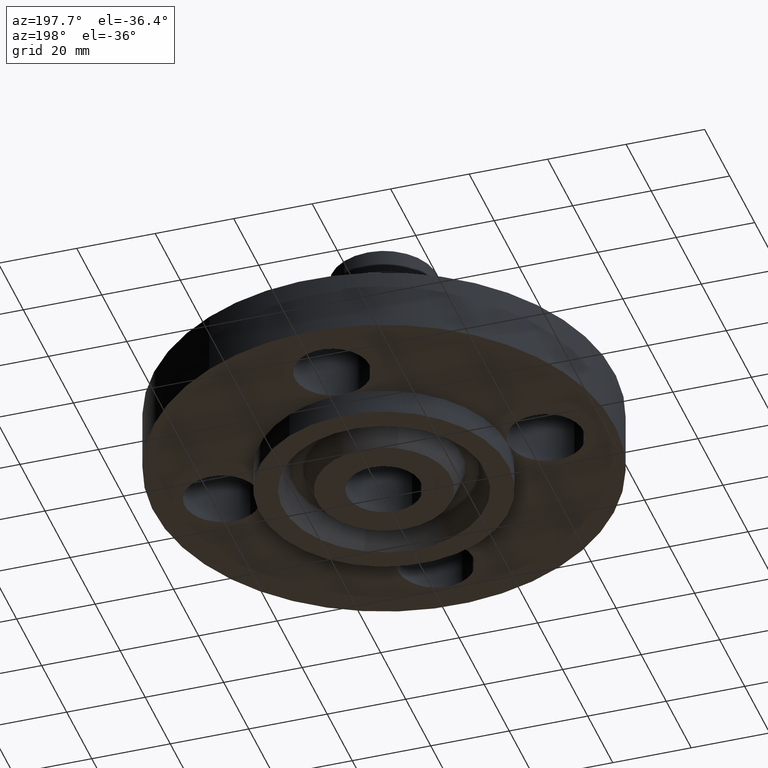
[diagram: clean part render]
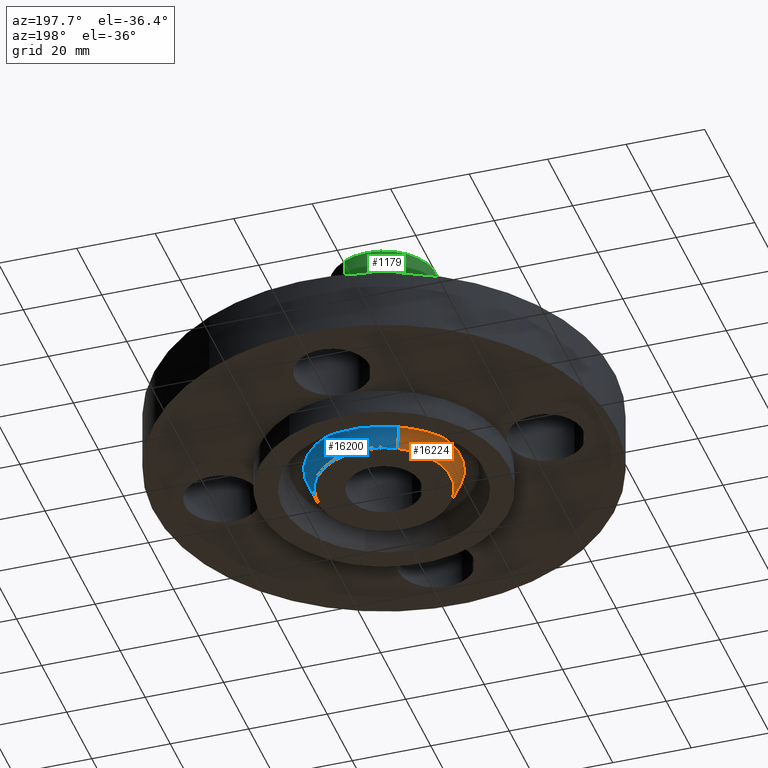
[diagram: same view with three faces highlighted in distinct colors, each labeled with its STEP entity id]
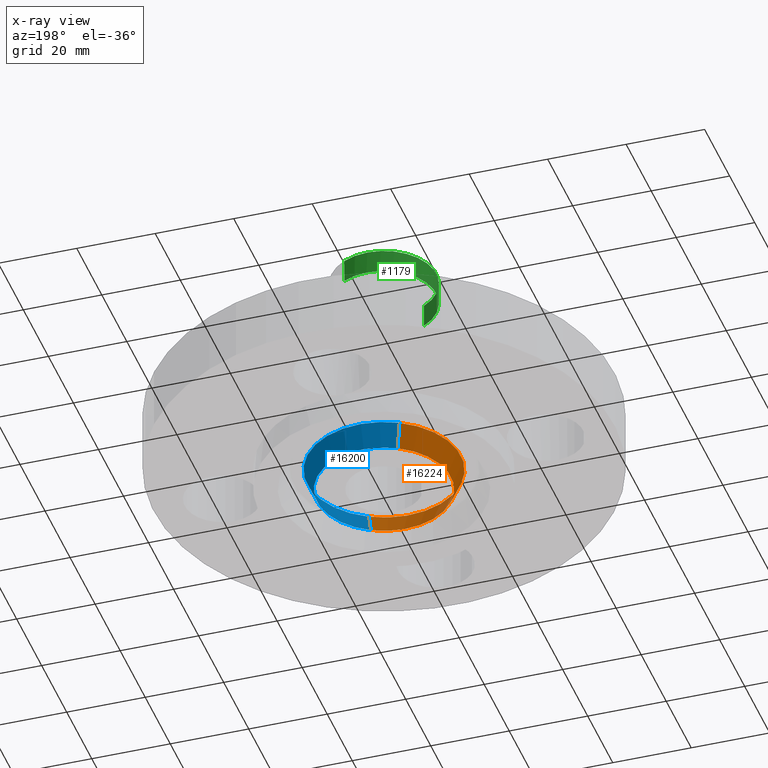
[diagram: x-ray of the same camera — body ghosted, the three highlighted faces saturated]
A machine part, auxiliary view with three faces highlighted in distinct colors.
The next image is the same camera in x-ray (body ghosted, the three faces saturated) — at least one of them is partly hidden behind the body in this view.
Their STEP definitions:

[orange] entity #16224 — the highlighted conical surface has half-angle 23 deg.
#15673=AXIS2_PLACEMENT_3D('Circle Axis2P3D',#15671,#15672,$) ;
#16211=AXIS2_PLACEMENT_3D('Cone Axis2P3D',#16208,#16209,#16210) ;
#16215=AXIS2_PLACEMENT_3D('Circle Axis2P3D',#16213,#16214,$) ;
#15637=CARTESIAN_POINT('Vertex',(0.369206329292,-0.675827652547,-0.0188873350169)) ;
#15644=CARTESIAN_POINT('Vertex',(-0.369206329292,0.675827652547,-0.0188873350171)) ;
#15671=CARTESIAN_POINT('Axis2P3D Location',(0.,0.,-0.0188873350169)) ;
#16175=CARTESIAN_POINT('Line Origine',(-0.345690145618,0.63278156707,-0.134443667509)) ;
#16179=CARTESIAN_POINT('Vertex',(-0.322173961959,0.589735481577,-0.250000000001)) ;
#16182=CARTESIAN_POINT('Line Origine',(0.345690145618,-0.63278156707,-0.134443667509)) ;
#16186=CARTESIAN_POINT('Vertex',(0.322173961959,-0.589735481627,-0.250000000001)) ;
#16208=CARTESIAN_POINT('Axis2P3D Location',(0.,0.,-0.310000000001)) ;
#16213=CARTESIAN_POINT('Axis2P3D Location',(0.,0.,-0.250000000001)) ;
#15672=DIRECTION('Axis2P3D Direction',(0.,0.,0.0393700787402)) ;
#16176=DIRECTION('Vector Direction',(-0.00737505833566,0.0134999537303,0.0362403485611)) ;
#16183=DIRECTION('Vector Direction',(0.00737505833566,-0.0134999537303,0.0362403485611)) ;
#16209=DIRECTION('Axis2P3D Direction',(0.,0.,0.0393700787402)) ;
#16210=DIRECTION('Axis2P3D XDirection',(-0.0188750212049,0.0345504945626,0.)) ;
#16214=DIRECTION('Axis2P3D Direction',(0.,0.,0.0393700787402)) ;
#16177=VECTOR('Line Direction',#16176,0.0393700787402) ;
#16184=VECTOR('Line Direction',#16183,0.0393700787402) ;
#16219=ORIENTED_EDGE('',*,*,#16188,.F.) ;
#16220=ORIENTED_EDGE('',*,*,#15675,.F.) ;
#16221=ORIENTED_EDGE('',*,*,#16181,.T.) ;
#16222=ORIENTED_EDGE('',*,*,#16217,.F.) ;
#16224=ADVANCED_FACE('PartBody',(#16223),#16212,.T.) ;
#15674=CIRCLE('generated circle',#15673,0.770101505996) ;
#16216=CIRCLE('generated circle',#16215,0.672000000003) ;
#16212=CONICAL_SURFACE('Cone',#16211,0.64653151103,0.401425727959) ;
#15675=EDGE_CURVE('',#15645,#15638,#15674,.T.) ;
#16181=EDGE_CURVE('',#15645,#16180,#16178,.F.) ;
#16188=EDGE_CURVE('',#15638,#16187,#16185,.F.) ;
#16217=EDGE_CURVE('',#16187,#16180,#16216,.F.) ;
#16218=EDGE_LOOP('',(#16219,#16220,#16221,#16222)) ;
#16223=FACE_OUTER_BOUND('',#16218,.T.) ;
#16178=LINE('Line',#16175,#16177) ;
#16185=LINE('Line',#16182,#16184) ;
#15638=VERTEX_POINT('',#15637) ;
#15645=VERTEX_POINT('',#15644) ;
#16180=VERTEX_POINT('',#16179) ;
#16187=VERTEX_POINT('',#16186) ;

[blue] entity #16200 — the highlighted conical surface has half-angle 23 deg.
#15642=AXIS2_PLACEMENT_3D('Circle Axis2P3D',#15640,#15641,$) ;
#16173=AXIS2_PLACEMENT_3D('Cone Axis2P3D',#16170,#16171,#16172) ;
#16191=AXIS2_PLACEMENT_3D('Circle Axis2P3D',#16189,#16190,$) ;
#15637=CARTESIAN_POINT('Vertex',(0.369206329292,-0.675827652547,-0.0188873350169)) ;
#15640=CARTESIAN_POINT('Axis2P3D Location',(0.,0.,-0.0188873350169)) ;
#15644=CARTESIAN_POINT('Vertex',(-0.369206329292,0.675827652547,-0.0188873350171)) ;
#16170=CARTESIAN_POINT('Axis2P3D Location',(0.,0.,-0.310000000001)) ;
#16175=CARTESIAN_POINT('Line Origine',(-0.345690145618,0.63278156707,-0.134443667509)) ;
#16179=CARTESIAN_POINT('Vertex',(-0.322173961959,0.589735481577,-0.250000000001)) ;
#16182=CARTESIAN_POINT('Line Origine',(0.345690145618,-0.63278156707,-0.134443667509)) ;
#16186=CARTESIAN_POINT('Vertex',(0.322173961959,-0.589735481627,-0.250000000001)) ;
#16189=CARTESIAN_POINT('Axis2P3D Location',(0.,0.,-0.250000000001)) ;
#15641=DIRECTION('Axis2P3D Direction',(0.,0.,0.0393700787402)) ;
#16171=DIRECTION('Axis2P3D Direction',(0.,0.,0.0393700787402)) ;
#16172=DIRECTION('Axis2P3D XDirection',(0.0188750212049,-0.0345504945626,0.)) ;
#16176=DIRECTION('Vector Direction',(-0.00737505833566,0.0134999537303,0.0362403485611)) ;
#16183=DIRECTION('Vector Direction',(0.00737505833566,-0.0134999537303,0.0362403485611)) ;
#16190=DIRECTION('Axis2P3D Direction',(0.,0.,0.0393700787402)) ;
#16177=VECTOR('Line Direction',#16176,0.0393700787402) ;
#16184=VECTOR('Line Direction',#16183,0.0393700787402) ;
#16195=ORIENTED_EDGE('',*,*,#16181,.F.) ;
#16196=ORIENTED_EDGE('',*,*,#15646,.F.) ;
#16197=ORIENTED_EDGE('',*,*,#16188,.T.) ;
#16198=ORIENTED_EDGE('',*,*,#16193,.F.) ;
#16200=ADVANCED_FACE('PartBody',(#16199),#16174,.T.) ;
#15643=CIRCLE('generated circle',#15642,0.770101505996) ;
#16192=CIRCLE('generated circle',#16191,0.672000000003) ;
#16174=CONICAL_SURFACE('Cone',#16173,0.64653151103,0.401425727959) ;
#15646=EDGE_CURVE('',#15638,#15645,#15643,.T.) ;
#16181=EDGE_CURVE('',#15645,#16180,#16178,.F.) ;
#16188=EDGE_CURVE('',#15638,#16187,#16185,.F.) ;
#16193=EDGE_CURVE('',#16180,#16187,#16192,.F.) ;
#16194=EDGE_LOOP('',(#16195,#16196,#16197,#16198)) ;
#16199=FACE_OUTER_BOUND('',#16194,.T.) ;
#16178=LINE('Line',#16175,#16177) ;
#16185=LINE('Line',#16182,#16184) ;
#15638=VERTEX_POINT('',#15637) ;
#15645=VERTEX_POINT('',#15644) ;
#16180=VERTEX_POINT('',#16179) ;
#16187=VERTEX_POINT('',#16186) ;

[green] entity #1179 — the highlighted cylindrical surface (partial cylindrical patch) has radius 13.335 mm, axis along (-0, 0, -1).
#852=AXIS2_PLACEMENT_3D('Circle Axis2P3D',#850,#851,$) ;
#1144=AXIS2_PLACEMENT_3D('Cylinder Axis2P3D',#1141,#1142,#1143) ;
#1162=AXIS2_PLACEMENT_3D('Circle Axis2P3D',#1160,#1161,$) ;
#1169=AXIS2_PLACEMENT_3D('Circle Axis2P3D',#1167,#1168,$) ;
#847=CARTESIAN_POINT('Vertex',(-0.251698407768,-0.460730844994,1.95603061929)) ;
#850=CARTESIAN_POINT('Axis2P3D Location',(0.,0.,1.95603061929)) ;
#854=CARTESIAN_POINT('Vertex',(0.251698407768,0.460730844994,1.95603061929)) ;
#1141=CARTESIAN_POINT('Axis2P3D Location',(0.,0.,1.)) ;
#1146=CARTESIAN_POINT('Line Origine',(0.251698407768,0.460730844994,2.0741408555)) ;
#1150=CARTESIAN_POINT('Vertex',(0.251698407768,0.460730844994,2.19225109172)) ;
#1153=CARTESIAN_POINT('Line Origine',(-0.251698407768,-0.460730844994,2.0741408555)) ;
#1157=CARTESIAN_POINT('Vertex',(-0.251698407768,-0.460730844994,2.19225109172)) ;
#1160=CARTESIAN_POINT('Axis2P3D Location',(0.,0.,2.19225109172)) ;
#1164=CARTESIAN_POINT('Vertex',(-0.251698407768,0.460730844994,2.19225109172)) ;
#1167=CARTESIAN_POINT('Axis2P3D Location',(0.,0.,2.19225109172)) ;
#851=DIRECTION('Axis2P3D Direction',(-0.,0.,-0.0393700787402)) ;
#1142=DIRECTION('Axis2P3D Direction',(-0.,0.,-0.0393700787402)) ;
#1143=DIRECTION('Axis2P3D XDirection',(-0.0188750212049,-0.0345504945626,0.)) ;
#1147=DIRECTION('Vector Direction',(0.,0.,-0.0393700787402)) ;
#1154=DIRECTION('Vector Direction',(0.,0.,-0.0393700787402)) ;
#1161=DIRECTION('Axis2P3D Direction',(-0.,0.,-0.0393700787402)) ;
#1168=DIRECTION('Axis2P3D Direction',(-0.,0.,-0.0393700787402)) ;
#1148=VECTOR('Line Direction',#1147,0.0393700787402) ;
#1155=VECTOR('Line Direction',#1154,0.0393700787402) ;
#1173=ORIENTED_EDGE('',*,*,#1152,.F.) ;
#1174=ORIENTED_EDGE('',*,*,#856,.F.) ;
#1175=ORIENTED_EDGE('',*,*,#1159,.T.) ;
#1176=ORIENTED_EDGE('',*,*,#1166,.F.) ;
#1177=ORIENTED_EDGE('',*,*,#1171,.T.) ;
#1179=ADVANCED_FACE('PartBody',(#1178),#1145,.T.) ;
#853=CIRCLE('generated circle',#852,0.525000000002) ;
#1163=CIRCLE('generated circle',#1162,0.525000000002) ;
#1170=CIRCLE('generated circle',#1169,0.525000000002) ;
#1145=CYLINDRICAL_SURFACE('generated cylinder',#1144,0.525000000002) ;
#856=EDGE_CURVE('',#848,#855,#853,.T.) ;
#1152=EDGE_CURVE('',#855,#1151,#1149,.F.) ;
#1159=EDGE_CURVE('',#848,#1158,#1156,.F.) ;
#1166=EDGE_CURVE('',#1165,#1158,#1163,.F.) ;
#1171=EDGE_CURVE('',#1165,#1151,#1170,.T.) ;
#1172=EDGE_LOOP('',(#1173,#1174,#1175,#1176,#1177)) ;
#1178=FACE_OUTER_BOUND('',#1172,.T.) ;
#1149=LINE('Line',#1146,#1148) ;
#1156=LINE('Line',#1153,#1155) ;
#848=VERTEX_POINT('',#847) ;
#855=VERTEX_POINT('',#854) ;
#1151=VERTEX_POINT('',#1150) ;
#1158=VERTEX_POINT('',#1157) ;
#1165=VERTEX_POINT('',#1164) ;